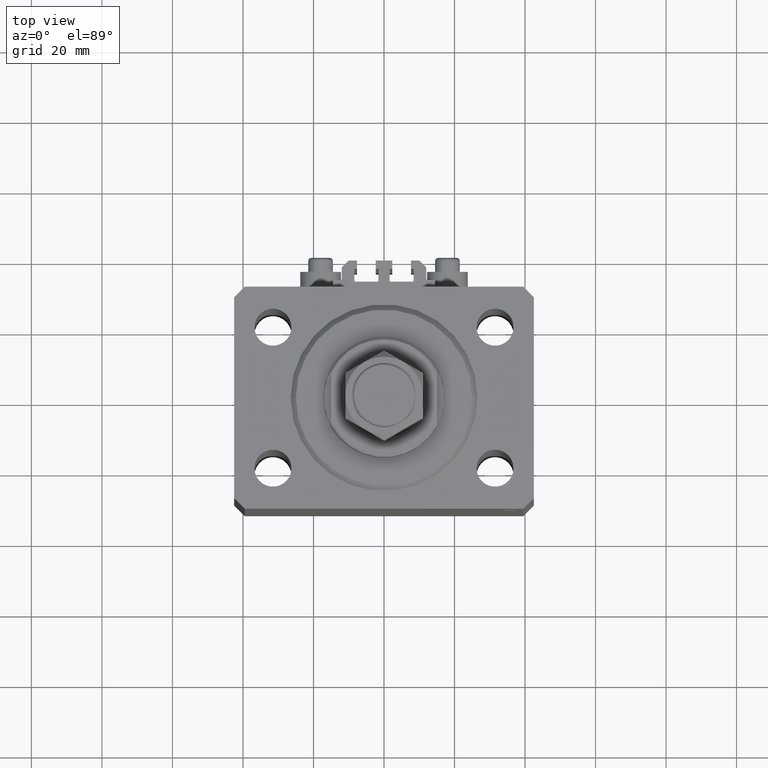
[diagram: clean part render]
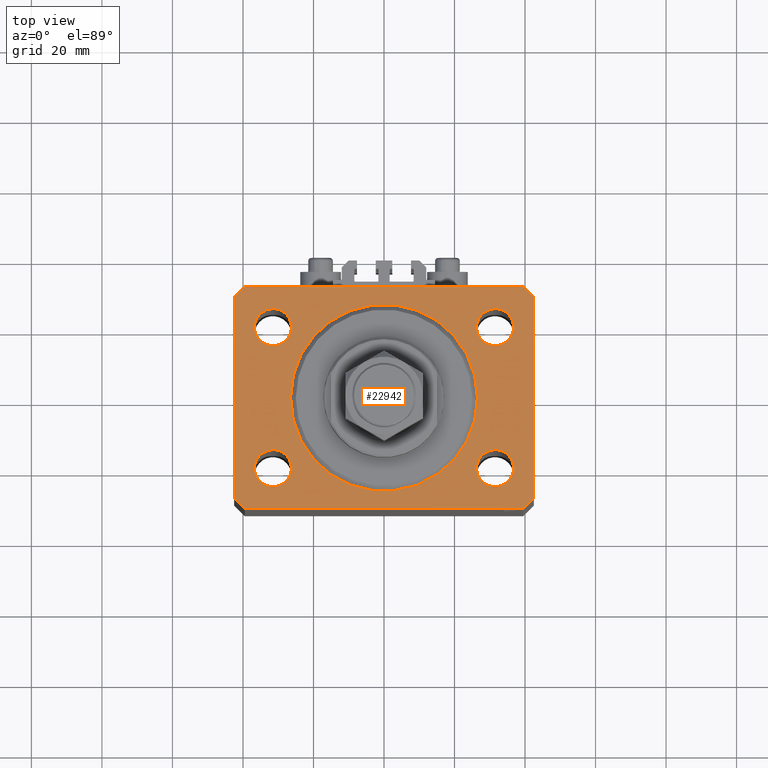
[diagram: same view with one face highlighted and labeled with its STEP entity id]
A machine part, top view. The second image highlights one B-rep face of the part: STEP entity #22942.
In plain terms, the highlighted planar face has unit normal (0, 0, 1).
Its self-contained STEP definition (entity closure, byte-faithful):
#57 = VERTEX_POINT ( 'NONE', #13059 ) ;
#120 = EDGE_CURVE ( 'NONE', #42599, #46574, #47233, .T. ) ;
#432 = CARTESIAN_POINT ( 'NONE',  ( 0.000000000000000000, 0.000000000000000000, 0.000000000000000000 ) ) ;
#707 = CARTESIAN_POINT ( 'NONE',  ( 36.74999999999999289, -20.00000000000000355, 0.000000000000000000 ) ) ;
#1252 = DIRECTION ( 'NONE',  ( -0.7071067811865356934, 0.7071067811865594521, 0.000000000000000000 ) ) ;
#1283 = ORIENTED_EDGE ( 'NONE', *, *, #25964, .F. ) ;
#2388 = CARTESIAN_POINT ( 'NONE',  ( -31.50000000000000000, 19.99999999999999645, 0.000000000000000000 ) ) ;
#2756 = DIRECTION ( 'NONE',  ( 0.000000000000000000, 0.000000000000000000, 1.000000000000000000 ) ) ;
#3452 = CARTESIAN_POINT ( 'NONE',  ( -39.50000000000000711, -31.50000000000000000, 0.000000000000000000 ) ) ;
#3610 = CARTESIAN_POINT ( 'NONE',  ( 36.75000000000000000, 19.99999999999999289, 0.000000000000000000 ) ) ;
#3674 = FACE_BOUND ( 'NONE', #4786, .T. ) ;
#4001 = ORIENTED_EDGE ( 'NONE', *, *, #41897, .T. ) ;
#4707 = VERTEX_POINT ( 'NONE', #12233 ) ;
#4786 = EDGE_LOOP ( 'NONE', ( #1283, #48400 ) ) ;
#5108 = VERTEX_POINT ( 'NONE', #36436 ) ;
#5422 = VECTOR ( 'NONE', #6802, 1000.000000000000000 ) ;
#5734 = EDGE_CURVE ( 'NONE', #19682, #35627, #35876, .T. ) ;
#6227 = CARTESIAN_POINT ( 'NONE',  ( -31.50000000000000000, 19.99999999999999645, 0.000000000000000000 ) ) ;
#6292 = AXIS2_PLACEMENT_3D ( 'NONE', #26632, #22676, #44988 ) ;
#6515 = DIRECTION ( 'NONE',  ( 1.000000000000000000, 0.000000000000000000, 0.000000000000000000 ) ) ;
#6728 = AXIS2_PLACEMENT_3D ( 'NONE', #28804, #43934, #6515 ) ;
#6802 = DIRECTION ( 'NONE',  ( 0.7071067811865483499, 0.7071067811865466846, 0.000000000000000000 ) ) ;
#7337 = EDGE_CURVE ( 'NONE', #35627, #19682, #24961, .T. ) ;
#7705 = VECTOR ( 'NONE', #46595, 1000.000000000000000 ) ;
#8720 = CARTESIAN_POINT ( 'NONE',  ( 31.49999999999999289, -20.00000000000000355, 0.000000000000000000 ) ) ;
#9436 = ORIENTED_EDGE ( 'NONE', *, *, #13733, .F. ) ;
#10037 = CARTESIAN_POINT ( 'NONE',  ( 39.50000000000000711, -31.50000000000000000, 0.000000000000000000 ) ) ;
#10620 = CARTESIAN_POINT ( 'NONE',  ( -31.49999999999999289, -20.00000000000000355, 0.000000000000000000 ) ) ;
#11249 = EDGE_CURVE ( 'NONE', #18297, #47261, #11253, .T. ) ;
#11253 = LINE ( 'NONE', #26594, #5422 ) ;
#11353 = FACE_BOUND ( 'NONE', #25782, .T. ) ;
#11475 = LINE ( 'NONE', #41700, #33412 ) ;
#11896 = EDGE_LOOP ( 'NONE', ( #9436, #47596 ) ) ;
#11954 = VERTEX_POINT ( 'NONE', #22700 ) ;
#12130 = VERTEX_POINT ( 'NONE', #13270 ) ;
#12233 = CARTESIAN_POINT ( 'NONE',  ( -26.25000000000000000, 19.99999999999999645, 0.000000000000000000 ) ) ;
#12372 = EDGE_CURVE ( 'NONE', #38849, #34198, #32049, .T. ) ;
#12545 = CARTESIAN_POINT ( 'NONE',  ( -31.49999999999999289, -20.00000000000000355, 0.000000000000000000 ) ) ;
#13059 = CARTESIAN_POINT ( 'NONE',  ( -36.75000000000000000, 19.99999999999999645, 0.000000000000000000 ) ) ;
#13236 = EDGE_CURVE ( 'NONE', #57, #4707, #24113, .T. ) ;
#13270 = CARTESIAN_POINT ( 'NONE',  ( -26.24999999999999289, -20.00000000000000355, 0.000000000000000000 ) ) ;
#13733 = EDGE_CURVE ( 'NONE', #12130, #46582, #21787, .T. ) ;
#13792 = CARTESIAN_POINT ( 'NONE',  ( -42.50000000000000000, 28.50000000000000000, 0.000000000000000000 ) ) ;
#13919 = ORIENTED_EDGE ( 'NONE', *, *, #5734, .F. ) ;
#14181 = CIRCLE ( 'NONE', #6292, 26.50000000000000355 ) ;
#14447 = DIRECTION ( 'NONE',  ( 1.000000000000000000, 0.000000000000000000, 0.000000000000000000 ) ) ;
#14581 = FACE_OUTER_BOUND ( 'NONE', #19124, .T. ) ;
#14640 = AXIS2_PLACEMENT_3D ( 'NONE', #2388, #17506, #32617 ) ;
#14911 = DIRECTION ( 'NONE',  ( 1.000000000000000000, 0.000000000000000000, 0.000000000000000000 ) ) ;
#15412 = LINE ( 'NONE', #38204, #7705 ) ;
#15619 = AXIS2_PLACEMENT_3D ( 'NONE', #8720, #27792, #42920 ) ;
#15725 = AXIS2_PLACEMENT_3D ( 'NONE', #6227, #2756, #18111 ) ;
#16262 = DIRECTION ( 'NONE',  ( 1.000000000000000000, 0.000000000000000000, 0.000000000000000000 ) ) ;
#16336 = DIRECTION ( 'NONE',  ( 0.000000000000000000, 0.000000000000000000, 1.000000000000000000 ) ) ;
#16545 = CIRCLE ( 'NONE', #43436, 26.50000000000000355 ) ;
#17506 = DIRECTION ( 'NONE',  ( 0.000000000000000000, 0.000000000000000000, 1.000000000000000000 ) ) ;
#18089 = VECTOR ( 'NONE', #47799, 1000.000000000000000 ) ;
#18111 = DIRECTION ( 'NONE',  ( 1.000000000000000000, 0.000000000000000000, 0.000000000000000000 ) ) ;
#18274 = ORIENTED_EDGE ( 'NONE', *, *, #7337, .F. ) ;
#18297 = VERTEX_POINT ( 'NONE', #10037 ) ;
#18364 = EDGE_CURVE ( 'NONE', #5108, #18651, #15412, .T. ) ;
#18542 = ORIENTED_EDGE ( 'NONE', *, *, #28863, .T. ) ;
#18651 = VERTEX_POINT ( 'NONE', #32631 ) ;
#19124 = EDGE_LOOP ( 'NONE', ( #27407, #18542, #36956, #35162, #4001, #24289, #41975, #34557 ) ) ;
#19206 = CARTESIAN_POINT ( 'NONE',  ( 26.50000000000000355, 0.000000000000000000, 0.000000000000000000 ) ) ;
#19273 = DIRECTION ( 'NONE',  ( 0.000000000000000000, 0.000000000000000000, 1.000000000000000000 ) ) ;
#19549 = VERTEX_POINT ( 'NONE', #43087 ) ;
#19682 = VERTEX_POINT ( 'NONE', #3610 ) ;
#20063 = DIRECTION ( 'NONE',  ( 1.000000000000000000, 0.000000000000000000, 0.000000000000000000 ) ) ;
#20086 = LINE ( 'NONE', #35190, #24438 ) ;
#20806 = ORIENTED_EDGE ( 'NONE', *, *, #12372, .F. ) ;
#21123 = CARTESIAN_POINT ( 'NONE',  ( 26.24999999999999645, -20.00000000000000355, 0.000000000000000000 ) ) ;
#21384 = EDGE_CURVE ( 'NONE', #46582, #12130, #35353, .T. ) ;
#21393 = CARTESIAN_POINT ( 'NONE',  ( 31.50000000000000000, 19.99999999999999289, 0.000000000000000000 ) ) ;
#21514 = CARTESIAN_POINT ( 'NONE',  ( -36.74999999999999289, -20.00000000000000355, 0.000000000000000000 ) ) ;
#21787 = CIRCLE ( 'NONE', #24142, 5.250000000000000888 ) ;
#21894 = LINE ( 'NONE', #43966, #23922 ) ;
#22252 = DIRECTION ( 'NONE',  ( 1.000000000000000000, 0.000000000000000000, -0.000000000000000000 ) ) ;
#22362 = DIRECTION ( 'NONE',  ( 0.000000000000000000, 0.000000000000000000, 1.000000000000000000 ) ) ;
#22386 = DIRECTION ( 'NONE',  ( 0.7071067811865471286, -0.7071067811865479058, 0.000000000000000000 ) ) ;
#22486 = EDGE_CURVE ( 'NONE', #34198, #38849, #48875, .T. ) ;
#22503 = DIRECTION ( 'NONE',  ( 1.000000000000000000, 0.000000000000000000, 0.000000000000000000 ) ) ;
#22517 = CARTESIAN_POINT ( 'NONE',  ( -42.50000000000000000, 28.50000000000000000, 0.000000000000000000 ) ) ;
#22676 = DIRECTION ( 'NONE',  ( 0.000000000000000000, 0.000000000000000000, 1.000000000000000000 ) ) ;
#22700 = CARTESIAN_POINT ( 'NONE',  ( -26.50000000000000355, 3.245314017740486554E-15, 0.000000000000000000 ) ) ;
#22942 = ADVANCED_FACE ( 'NONE', ( #3674, #42068, #29702, #37609, #11353, #14581 ), #41818, .T. ) ;
#23922 = VECTOR ( 'NONE', #44202, 1000.000000000000000 ) ;
#24113 = CIRCLE ( 'NONE', #14640, 5.250000000000000888 ) ;
#24142 = AXIS2_PLACEMENT_3D ( 'NONE', #10620, #40606, #22503 ) ;
#24289 = ORIENTED_EDGE ( 'NONE', *, *, #11249, .T. ) ;
#24438 = VECTOR ( 'NONE', #1252, 1000.000000000000114 ) ;
#24961 = CIRCLE ( 'NONE', #32880, 5.249999999999997335 ) ;
#25140 = AXIS2_PLACEMENT_3D ( 'NONE', #432, #19273, #22252 ) ;
#25453 = ORIENTED_EDGE ( 'NONE', *, *, #13236, .F. ) ;
#25722 = VERTEX_POINT ( 'NONE', #19206 ) ;
#25782 = EDGE_LOOP ( 'NONE', ( #39910, #25453 ) ) ;
#25803 = EDGE_CURVE ( 'NONE', #4707, #57, #44239, .T. ) ;
#25964 = EDGE_CURVE ( 'NONE', #25722, #11954, #16545, .T. ) ;
#26306 = CARTESIAN_POINT ( 'NONE',  ( 31.50000000000000000, 19.99999999999999289, 0.000000000000000000 ) ) ;
#26508 = EDGE_CURVE ( 'NONE', #11954, #25722, #14181, .T. ) ;
#26594 = CARTESIAN_POINT ( 'NONE',  ( 39.50000000000000711, -31.50000000000000000, 0.000000000000000000 ) ) ;
#26632 = CARTESIAN_POINT ( 'NONE',  ( 0.000000000000000000, 0.000000000000000000, 0.000000000000000000 ) ) ;
#27407 = ORIENTED_EDGE ( 'NONE', *, *, #18364, .T. ) ;
#27792 = DIRECTION ( 'NONE',  ( 0.000000000000000000, 0.000000000000000000, 1.000000000000000000 ) ) ;
#27878 = VECTOR ( 'NONE', #28405, 1000.000000000000000 ) ;
#28405 = DIRECTION ( 'NONE',  ( 0.000000000000000000, -1.000000000000000000, 0.000000000000000000 ) ) ;
#28804 = CARTESIAN_POINT ( 'NONE',  ( 31.49999999999999289, -20.00000000000000355, 0.000000000000000000 ) ) ;
#28863 = EDGE_CURVE ( 'NONE', #18651, #42599, #30289, .T. ) ;
#29183 = VERTEX_POINT ( 'NONE', #47825 ) ;
#29397 = CARTESIAN_POINT ( 'NONE',  ( 26.25000000000000355, 19.99999999999999289, 0.000000000000000000 ) ) ;
#29702 = FACE_BOUND ( 'NONE', #37743, .T. ) ;
#30289 = LINE ( 'NONE', #36981, #36424 ) ;
#31377 = DIRECTION ( 'NONE',  ( 0.000000000000000000, 0.000000000000000000, 1.000000000000000000 ) ) ;
#32049 = CIRCLE ( 'NONE', #6728, 5.249999999999997335 ) ;
#32617 = DIRECTION ( 'NONE',  ( 1.000000000000000000, 0.000000000000000000, 0.000000000000000000 ) ) ;
#32631 = CARTESIAN_POINT ( 'NONE',  ( -39.50000000000000711, 31.50000000000000000, 0.000000000000000000 ) ) ;
#32880 = AXIS2_PLACEMENT_3D ( 'NONE', #26306, #37220, #14911 ) ;
#33412 = VECTOR ( 'NONE', #22386, 1000.000000000000000 ) ;
#34198 = VERTEX_POINT ( 'NONE', #707 ) ;
#34557 = ORIENTED_EDGE ( 'NONE', *, *, #42518, .T. ) ;
#35162 = ORIENTED_EDGE ( 'NONE', *, *, #37986, .T. ) ;
#35190 = CARTESIAN_POINT ( 'NONE',  ( 42.50000000000051870, 28.49999999999995381, 0.000000000000000000 ) ) ;
#35353 = CIRCLE ( 'NONE', #40139, 5.250000000000000888 ) ;
#35627 = VERTEX_POINT ( 'NONE', #29397 ) ;
#35876 = CIRCLE ( 'NONE', #39058, 5.249999999999997335 ) ;
#36424 = VECTOR ( 'NONE', #44665, 1000.000000000000000 ) ;
#36436 = CARTESIAN_POINT ( 'NONE',  ( 39.50000000000056843, 31.50000000000000000, 0.000000000000000000 ) ) ;
#36956 = ORIENTED_EDGE ( 'NONE', *, *, #120, .T. ) ;
#36981 = CARTESIAN_POINT ( 'NONE',  ( -39.50000000000000711, 31.50000000000000000, 0.000000000000000000 ) ) ;
#37220 = DIRECTION ( 'NONE',  ( 0.000000000000000000, 0.000000000000000000, 1.000000000000000000 ) ) ;
#37352 = CARTESIAN_POINT ( 'NONE',  ( -42.50000000000000000, -28.50000000000000000, 0.000000000000000000 ) ) ;
#37593 = CARTESIAN_POINT ( 'NONE',  ( 42.50000000000000711, -28.50000000000000355, 0.000000000000000000 ) ) ;
#37609 = FACE_BOUND ( 'NONE', #48859, .T. ) ;
#37743 = EDGE_LOOP ( 'NONE', ( #41870, #20806 ) ) ;
#37884 = EDGE_CURVE ( 'NONE', #47261, #29183, #21894, .T. ) ;
#37986 = EDGE_CURVE ( 'NONE', #46574, #19549, #11475, .T. ) ;
#38204 = CARTESIAN_POINT ( 'NONE',  ( 39.50000000000056843, 31.50000000000000000, 0.000000000000000000 ) ) ;
#38849 = VERTEX_POINT ( 'NONE', #21123 ) ;
#39058 = AXIS2_PLACEMENT_3D ( 'NONE', #21393, #22362, #14447 ) ;
#39910 = ORIENTED_EDGE ( 'NONE', *, *, #25803, .F. ) ;
#40139 = AXIS2_PLACEMENT_3D ( 'NONE', #12545, #31377, #16262 ) ;
#40606 = DIRECTION ( 'NONE',  ( 0.000000000000000000, 0.000000000000000000, 1.000000000000000000 ) ) ;
#41700 = CARTESIAN_POINT ( 'NONE',  ( -42.50000000000000000, -28.50000000000000000, 0.000000000000000000 ) ) ;
#41818 = PLANE ( 'NONE',  #25140 ) ;
#41870 = ORIENTED_EDGE ( 'NONE', *, *, #22486, .F. ) ;
#41897 = EDGE_CURVE ( 'NONE', #19549, #18297, #44814, .T. ) ;
#41975 = ORIENTED_EDGE ( 'NONE', *, *, #37884, .T. ) ;
#42068 = FACE_BOUND ( 'NONE', #11896, .T. ) ;
#42518 = EDGE_CURVE ( 'NONE', #29183, #5108, #20086, .T. ) ;
#42599 = VERTEX_POINT ( 'NONE', #22517 ) ;
#42920 = DIRECTION ( 'NONE',  ( 1.000000000000000000, 0.000000000000000000, 0.000000000000000000 ) ) ;
#43087 = CARTESIAN_POINT ( 'NONE',  ( -39.50000000000000711, -31.50000000000000000, 0.000000000000000000 ) ) ;
#43098 = CARTESIAN_POINT ( 'NONE',  ( 0.000000000000000000, 0.000000000000000000, 0.000000000000000000 ) ) ;
#43436 = AXIS2_PLACEMENT_3D ( 'NONE', #43098, #16336, #20063 ) ;
#43934 = DIRECTION ( 'NONE',  ( 0.000000000000000000, 0.000000000000000000, 1.000000000000000000 ) ) ;
#43966 = CARTESIAN_POINT ( 'NONE',  ( 42.50000000000000711, -28.50000000000000355, 0.000000000000000000 ) ) ;
#44202 = DIRECTION ( 'NONE',  ( 8.886653596232072440E-15, 1.000000000000000000, 0.000000000000000000 ) ) ;
#44239 = CIRCLE ( 'NONE', #15725, 5.250000000000000888 ) ;
#44665 = DIRECTION ( 'NONE',  ( -0.7071067811865471286, -0.7071067811865479058, 0.000000000000000000 ) ) ;
#44814 = LINE ( 'NONE', #3452, #18089 ) ;
#44988 = DIRECTION ( 'NONE',  ( 1.000000000000000000, 0.000000000000000000, 0.000000000000000000 ) ) ;
#46574 = VERTEX_POINT ( 'NONE', #37352 ) ;
#46582 = VERTEX_POINT ( 'NONE', #21514 ) ;
#46595 = DIRECTION ( 'NONE',  ( -1.000000000000000000, 0.000000000000000000, 0.000000000000000000 ) ) ;
#47233 = LINE ( 'NONE', #13792, #27878 ) ;
#47261 = VERTEX_POINT ( 'NONE', #37593 ) ;
#47596 = ORIENTED_EDGE ( 'NONE', *, *, #21384, .F. ) ;
#47799 = DIRECTION ( 'NONE',  ( 1.000000000000000000, 0.000000000000000000, 0.000000000000000000 ) ) ;
#47825 = CARTESIAN_POINT ( 'NONE',  ( 42.50000000000051870, 28.49999999999995381, 0.000000000000000000 ) ) ;
#48400 = ORIENTED_EDGE ( 'NONE', *, *, #26508, .F. ) ;
#48859 = EDGE_LOOP ( 'NONE', ( #13919, #18274 ) ) ;
#48875 = CIRCLE ( 'NONE', #15619, 5.249999999999997335 ) ;